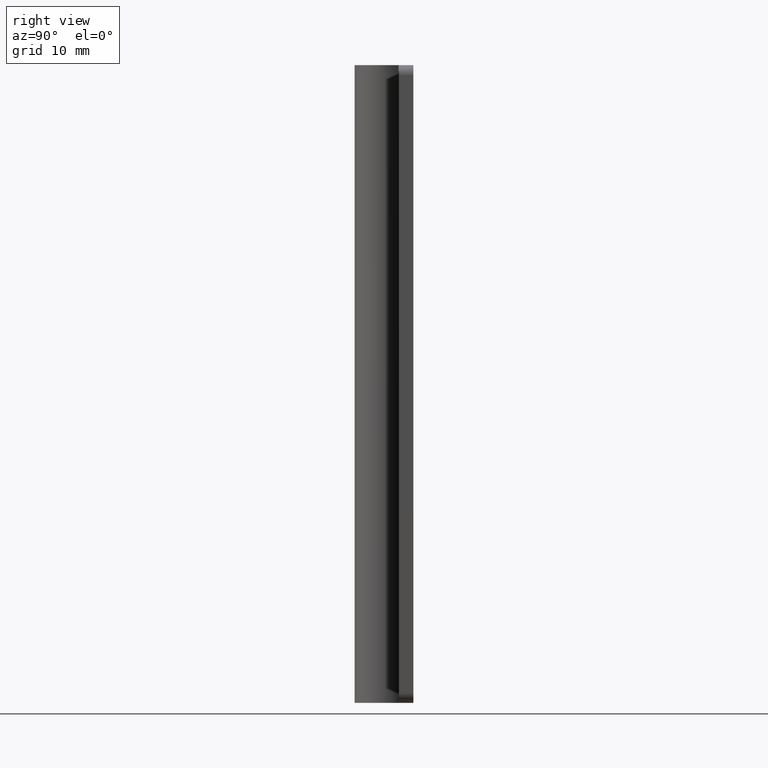
[diagram: clean part render]
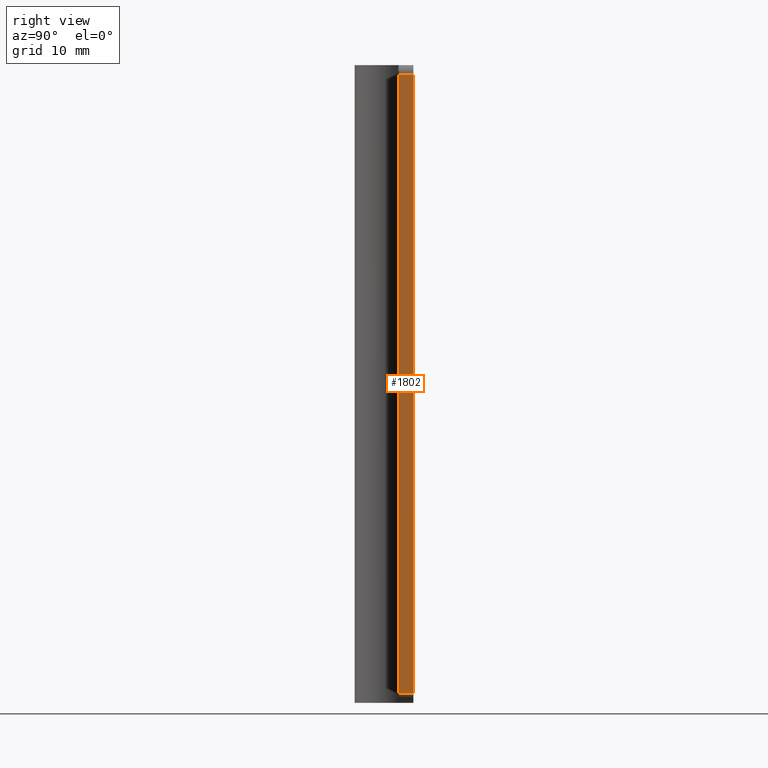
[diagram: same view with one face highlighted and labeled with its STEP entity id]
A machine part, right view. The second image highlights one B-rep face of the part: STEP entity #1802.
In plain terms, the highlighted face is a freeform B-spline surface patch.
Its self-contained STEP definition (entity closure, byte-faithful):
#1421=CARTESIAN_POINT('',(18.0,1.500000000000055,64.0));
#1422=VERTEX_POINT('',#1421);
#1438=CARTESIAN_POINT('',(18.0,3.0,64.0));
#1439=VERTEX_POINT('',#1438);
#1440=CARTESIAN_POINT('',(18.0,3.0,64.0));
#1441=CARTESIAN_POINT('',(18.0,1.500000000000055,64.0));
#1442=QUASI_UNIFORM_CURVE('',1,(#1440,#1441),.UNSPECIFIED.,.F.,.U.);
#1443=EDGE_CURVE('',#1439,#1422,#1442,.T.);
#1484=CARTESIAN_POINT('',(18.0,1.500000000000055,1.0));
#1485=VERTEX_POINT('',#1484);
#1506=CARTESIAN_POINT('',(18.0,3.0,1.0));
#1507=VERTEX_POINT('',#1506);
#1521=CARTESIAN_POINT('',(18.0,3.0,1.0));
#1522=CARTESIAN_POINT('',(18.0,1.500000000000055,1.0));
#1523=QUASI_UNIFORM_CURVE('',1,(#1521,#1522),.UNSPECIFIED.,.F.,.U.);
#1524=EDGE_CURVE('',#1507,#1485,#1523,.T.);
#1783=CARTESIAN_POINT('',(18.0,1.425075002907349,67.146849877893771));
#1784=CARTESIAN_POINT('',(18.0,1.425075002907349,-2.146851567685453));
#1785=CARTESIAN_POINT('',(18.0,3.074925037325842,67.146849877893771));
#1786=CARTESIAN_POINT('',(18.0,3.074925037325842,-2.146851567685453));
#1787=B_SPLINE_SURFACE_WITH_KNOTS('',1,1,((#1783,#1785),(#1784,#1786)),.UNSPECIFIED.,.F.,.F.,.U.,(2,2),(2,2),(0.0,69.293701445579231),(0.041708334948495,0.958291687403247),.UNSPECIFIED.);
#1788=CARTESIAN_POINT('',(18.0,3.0,1.0));
#1789=CARTESIAN_POINT('',(18.0,3.0,64.0));
#1790=QUASI_UNIFORM_CURVE('',1,(#1788,#1789),.UNSPECIFIED.,.F.,.U.);
#1791=EDGE_CURVE('',#1507,#1439,#1790,.T.);
#1792=ORIENTED_EDGE('',*,*,#1791,.T.);
#1793=ORIENTED_EDGE('',*,*,#1443,.T.);
#1794=CARTESIAN_POINT('',(18.0,1.500000000000055,1.0));
#1795=CARTESIAN_POINT('',(18.0,1.500000000000055,64.0));
#1796=QUASI_UNIFORM_CURVE('',1,(#1794,#1795),.UNSPECIFIED.,.F.,.U.);
#1797=EDGE_CURVE('',#1485,#1422,#1796,.T.);
#1798=ORIENTED_EDGE('',*,*,#1797,.F.);
#1799=ORIENTED_EDGE('',*,*,#1524,.F.);
#1800=EDGE_LOOP('',(#1792,#1793,#1798,#1799));
#1801=FACE_OUTER_BOUND('',#1800,.T.);
#1802=ADVANCED_FACE('',(#1801),#1787,.T.);